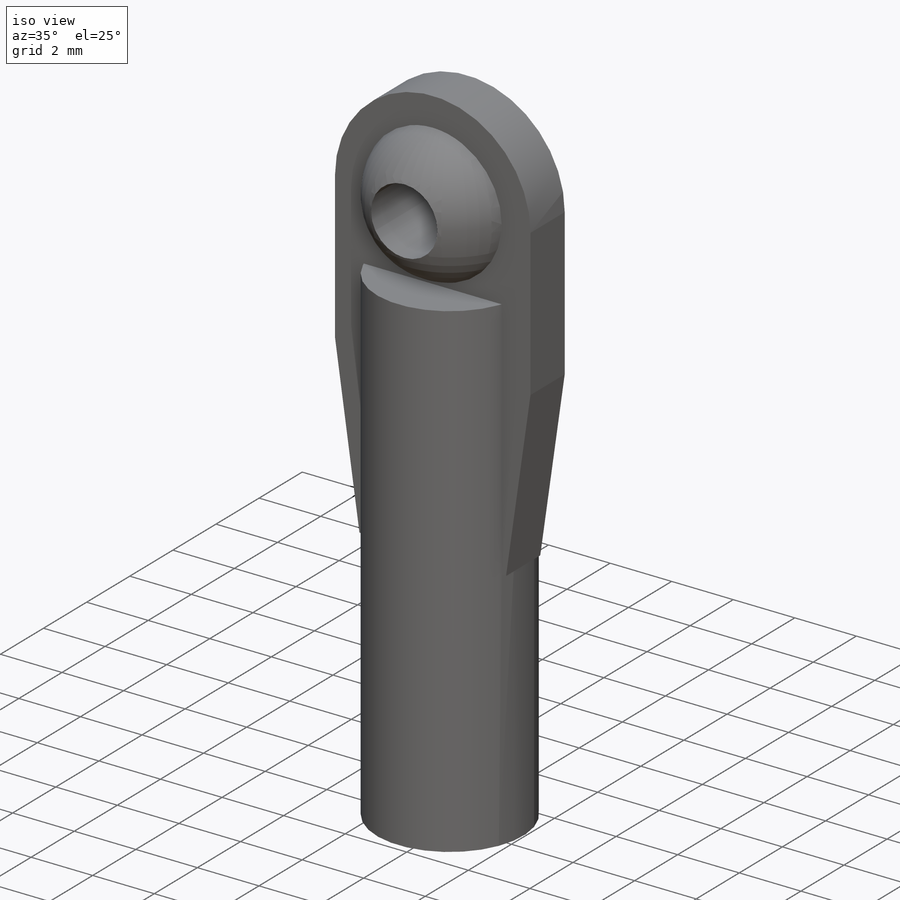
[diagram: iso view]
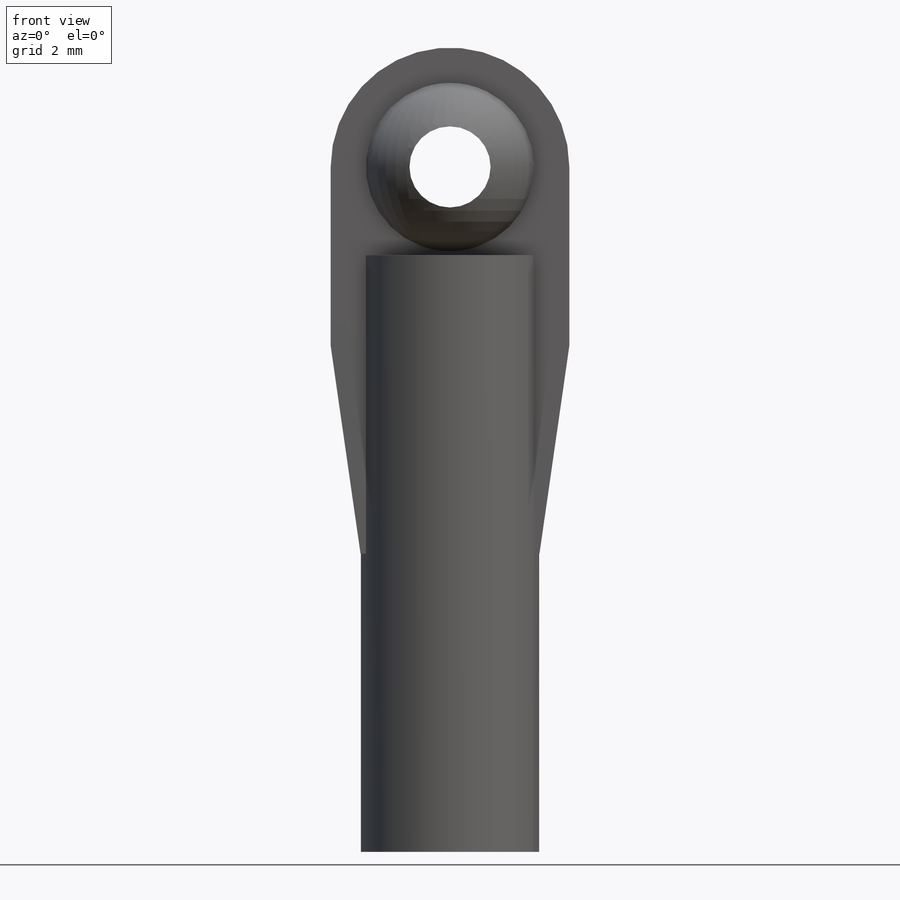
[diagram: front view]
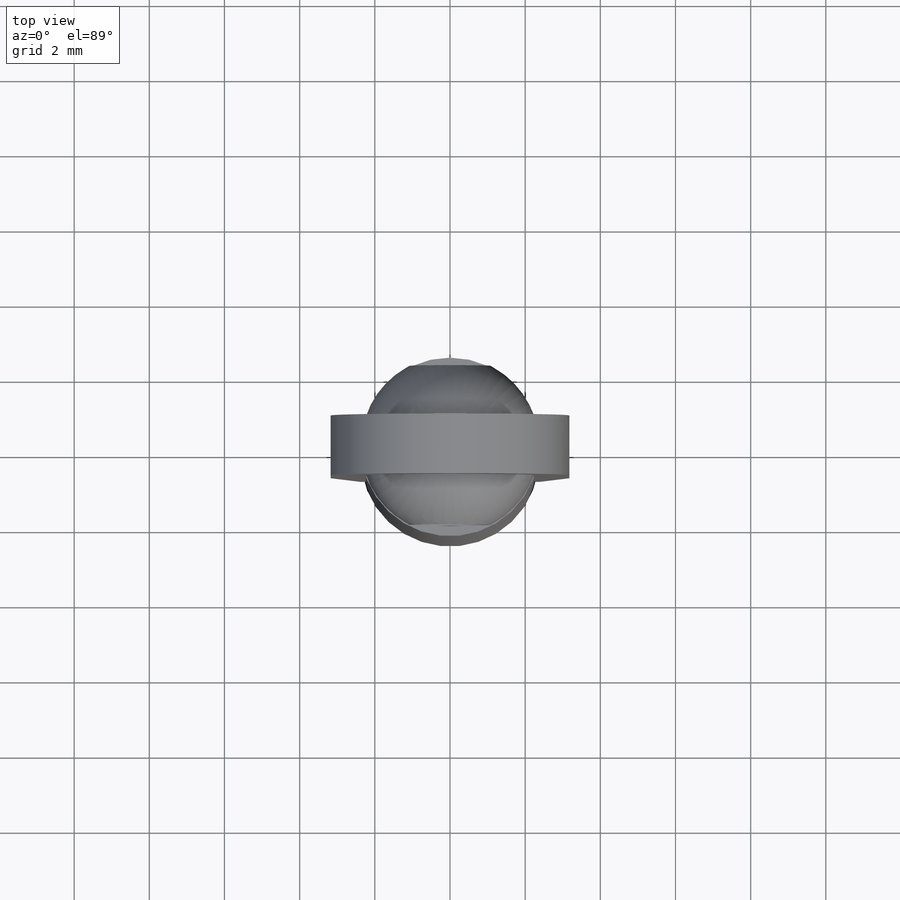
[diagram: top view]
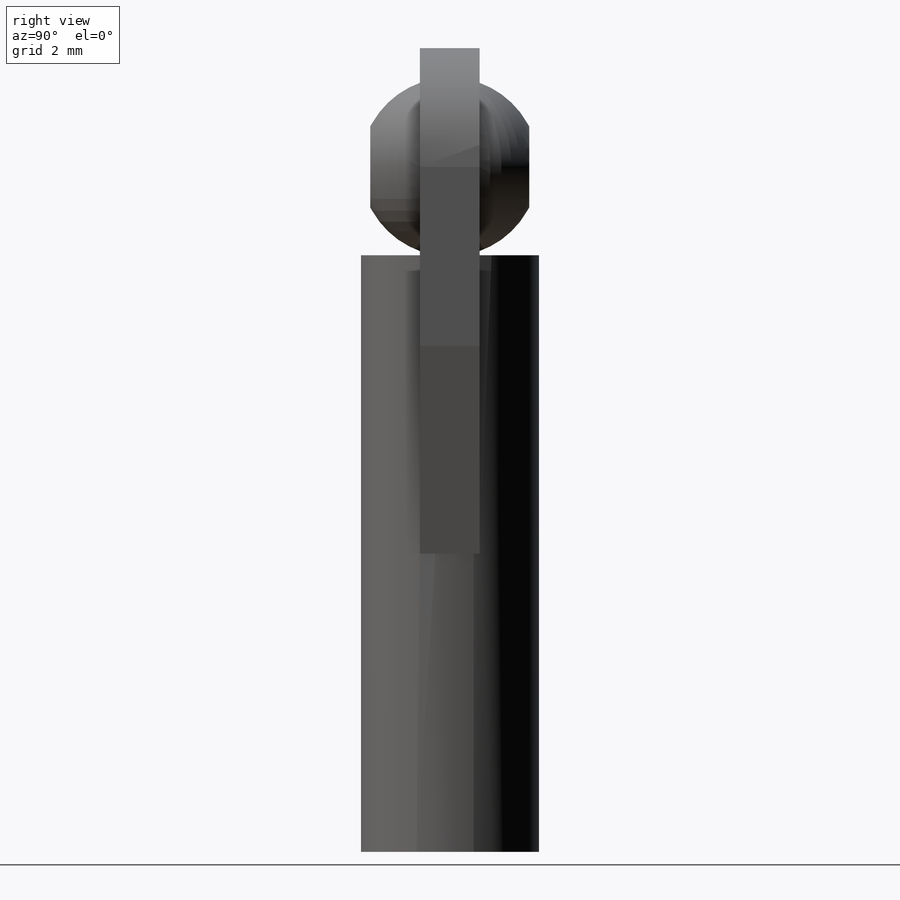
[diagram: right view]
SOLIDWORKS PART (.sldprt)
format: sldprt  version: not decoded by parser v0  size: 194,048 bytes
history: native  units: mm
features: sketch x6, extrude x2, material x1, revolve x1, cut_extrude x1, hole x1 (+12 scaffold rows collapsed)
feature tree (24):
  scaffold x12  (default folders/planes/origin — collapsed)
  material  "Material <not specified>"
  sketch  "Sketch2"  dims[D1=4.7498mm]
  revolve  "Revolve1"  Angle=360deg
  sketch  "Sketch3"  dims[D1=2.159mm]
  cut_extrude  "Cut-Extrude1"  [1 undecoded]
  sketch  "Sketch4"  dims[D1=6.35mm D2=17.399mm D3=4.7625mm D4=4.7625mm]
  extrude  "Boss-Extrude1"  Depth=1.5875mm
  sketch  "Sketch5"
  extrude  "Boss-Extrude2"  Depth=15.875mm
  hole  "#4-40 Tapped Hole1"  Diameter=2.2606mm Depth=12.7mm
  sketch  "Sketch7"
  sketch  "Sketch6"  dims[hole-wizard template sketch: 47 standard entries collapsed; hole parameters kept: c15.Tap Drill Depth=12.7mm c15.D3=~14.816244mm c15.Drill Angle=118.0deg]
decode coverage: 8 of 11 modeling features carry decoded parameters
note: ~ marks probable driven/reference dimensions
note: 1 parameter value undecoded
note: suppression state not decoded; provenance and decode notes live in map.json
